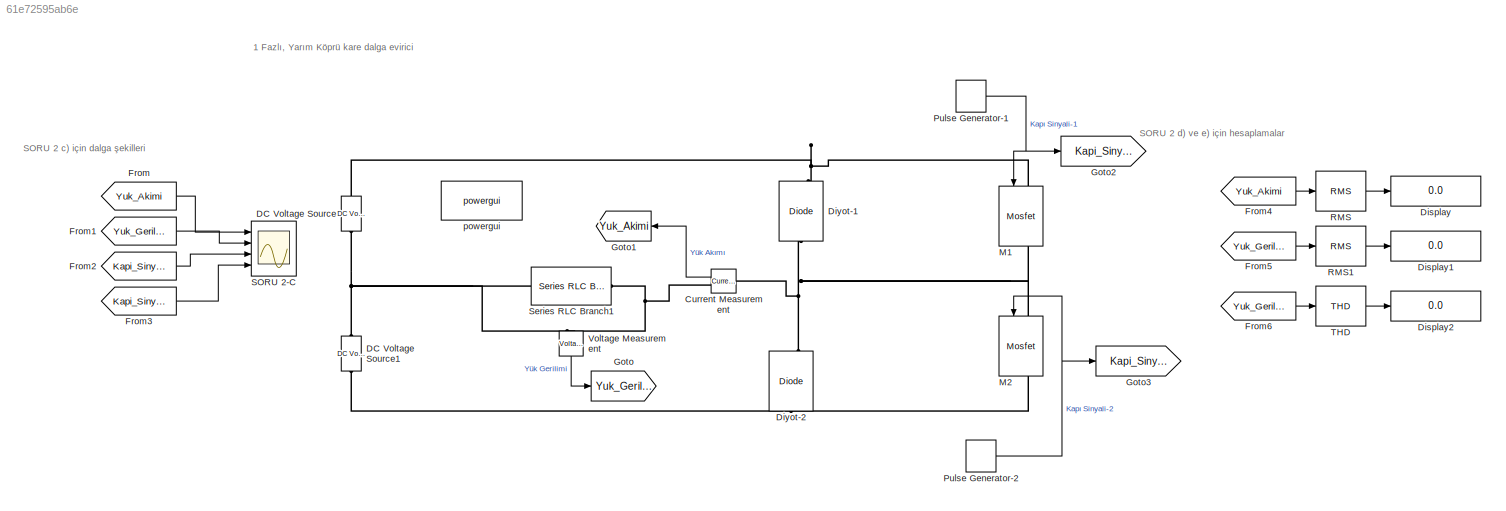
MODEL slx_61e72595ab6e
KIND model
CONFIG AbsTol = auto
CONFIG EnableMultiTasking = off
CONFIG FixedStep = auto
CONFIG MaxStep = auto
CONFIG MinStep = auto
CONFIG RelTol = 1e-3
CONFIG SampleTimeConstraint = Unconstrained
CONFIG Solver = VariableStepAuto
CONFIG SolverName = VariableStepAuto
CONFIG StartTime = 0.0
CONFIG StopTime = 6/100
BLOCK [Reference] Current Measurement  REF=powerlib/Measurements/Current Measurement
  Ports = [0, 1, 0, 0, 0, 1, 1]
  SourceBlock = powerlib/Measurements/Current Measurement
  SourceType = Current Measurement
  UserDataPersistent = on
BLOCK [Reference] DC Voltage Source  REF=powerlib/Electrical Sources/DC Voltage Source
  Ports = [0, 0, 0, 0, 0, 1, 1]
  SourceBlock = powerlib/Electrical Sources/DC Voltage Source
  SourceType = DC Voltage Source
BLOCK [Reference] DC Voltage Source1  REF=powerlib/Electrical Sources/DC Voltage Source
  Ports = [0, 0, 0, 0, 0, 1, 1]
  SourceBlock = powerlib/Electrical Sources/DC Voltage Source
  SourceType = DC Voltage Source
BLOCK [Display] Display
  Decimation = 1
  Ports = [1]
BLOCK [Display] Display1
  Decimation = 1
  Ports = [1]
BLOCK [Display] Display2
  Decimation = 1
  Ports = [1]
BLOCK [Reference] Diyot-1  REF=powerlib/Power Electronics/Diode
  NameLocation = right
  Ports = [0, 1, 0, 0, 0, 1, 1]
  SourceBlock = powerlib/Power Electronics/Diode
  SourceType = Diode
BLOCK [Reference] Diyot-2  REF=powerlib/Power Electronics/Diode
  NameLocation = right
  Ports = [0, 1, 0, 0, 0, 1, 1]
  SourceBlock = powerlib/Power Electronics/Diode
  SourceType = Diode
BLOCK [From] From
  GotoTag = Yuk_Akimi
BLOCK [From] From1
  GotoTag = Yuk_Gerilimi
BLOCK [From] From2
  GotoTag = Kapi_Sinyali_1
BLOCK [From] From3
  GotoTag = Kapi_Sinyali_2
BLOCK [From] From4
  GotoTag = Yuk_Akimi
BLOCK [From] From5
  GotoTag = Yuk_Gerilimi
BLOCK [From] From6
  GotoTag = Yuk_Gerilimi
BLOCK [Goto] Goto
  GotoTag = Yuk_Gerilimi
BLOCK [Goto] Goto1
  GotoTag = Yuk_Akimi
BLOCK [Goto] Goto2
  GotoTag = Kapi_Sinyali_1
BLOCK [Goto] Goto3
  GotoTag = Kapi_Sinyali_2
BLOCK [Reference] M1  REF=powerlib/Power Electronics/Mosfet
  NameLocation = left
  Ports = [1, 1, 0, 0, 0, 1, 1]
  SourceBlock = powerlib/Power Electronics/Mosfet
  SourceType = Mosfet
BLOCK [Reference] M2  REF=powerlib/Power Electronics/Mosfet
  NameLocation = left
  Ports = [1, 1, 0, 0, 0, 1, 1]
  SourceBlock = powerlib/Power Electronics/Mosfet
  SourceType = Mosfet
BLOCK [DiscretePulseGenerator] Pulse Generator-1
  Period = 1/50
  Ports = [0, 1]
  PulseType = Time based
  PulseWidth = 50
BLOCK [DiscretePulseGenerator] Pulse Generator-2
  Period = 1/50
  PhaseDelay = 1/100
  Ports = [0, 1]
  PulseType = Time based
  PulseWidth = 50
BLOCK [Reference] RMS  REF=powerlib_meascontrol/Measurements/RMS
  Ports = [1, 1]
  SourceBlock = powerlib_meascontrol/Measurements/RMS
  SourceType = RMS
BLOCK [Reference] RMS1  REF=powerlib_meascontrol/Measurements/RMS
  Ports = [1, 1]
  SourceBlock = powerlib_meascontrol/Measurements/RMS
  SourceType = RMS
BLOCK [Scope] SORU 2-C
  Floating = off
  NumInputPorts = 4
  Ports = [4]
  ScopeSpecificationString = Simulink.scopes.TimeScopeBlockCfg('CurrentConfiguration', extmgr.ConfigurationSet(extmgr.Configuration('Core','General UI',true,'FigureColor',[0.83921568627451 0.909803921568627 0.850980392156863]),extmgr.Configuration('Core','Source UI',true),extmgr.Configuration('Sources','WiredSimulink',true,'DataLoggingVariableName','ScopeData1'),extmgr.Configuration('Visuals','Time Domain',true,'SerializedDis...<+4719ch>
BLOCK [Reference] Series RLC Branch1  REF=powerlib/Elements/Series RLC Branch
  NameLocation = top
  Ports = [0, 0, 0, 0, 0, 1, 1]
  SourceBlock = powerlib/Elements/Series RLC Branch
  SourceType = Series RLC Branch
BLOCK [Reference] THD  REF=powerlib_meascontrol/Measurements/THD
  Ports = [1, 1]
  SourceBlock = powerlib_meascontrol/Measurements/THD
  SourceType = THD
BLOCK [Reference] Voltage Measurement  REF=powerlib/Measurements/Voltage Measurement
  NameLocation = left
  Ports = [0, 1, 0, 0, 0, 2]
  SourceBlock = powerlib/Measurements/Voltage Measurement
  SourceType = Voltage Measurement
  UserDataPersistent = on
BLOCK [Reference] powergui  REF=powerlib/powergui
  Ports = []
  Priority = 1
  SourceBlock = powerlib/powergui
  SourceType = PSB option menu block
ANNOTATION (root): 1 Fazlı, Yarım Köprü kare dalga evirici
ANNOTATION (root): SORU 2 c) için dalga şekilleri
ANNOTATION (root): SORU 2 d) ve e) için hesaplamalar
LINE Current Measurement:1 -> Goto1:1
LINE From1:1 -> SORU 2-C:2
LINE From2:1 -> SORU 2-C:3
LINE From3:1 -> SORU 2-C:4
LINE From4:1 -> RMS:1
LINE From5:1 -> RMS1:1
LINE From6:1 -> THD:1
LINE From:1 -> SORU 2-C:1
NET Pulse Generator-1:1 -> Goto2:1, M1:1
NET Pulse Generator-2:1 -> Goto3:1, M2:1
LINE RMS1:1 -> Display1:1
LINE RMS:1 -> Display:1
LINE THD:1 -> Display2:1
LINE Voltage Measurement:1 -> Goto:1
PNET net1: Current Measurement:LConn1 -- Diyot-1:LConn1 -- Diyot-2:RConn1 -- M1:RConn1 -- M2:LConn1
PNET net2: Current Measurement:RConn1 -- Series RLC Branch1:LConn1 -- Voltage Measurement:LConn1
PNET net3: DC Voltage Source1:LConn1 -- Diyot-2:LConn1 -- M2:RConn1
PNET net4: DC Voltage Source1:RConn1 -- DC Voltage Source:LConn1 -- Series RLC Branch1:RConn1 -- Voltage Measurement:LConn2
PNET net5: DC Voltage Source:RConn1 -- Diyot-1:RConn1 -- M1:LConn1
note: NET lines group one-source signal fan-out (src -> all destinations, sorted); 1:1 wires keep LINE; PNET lines group multi-terminal physical nets as a canonical sorted terminal list (undirected conserving connections); 2-terminal nets keep the pairwise PLINE form
